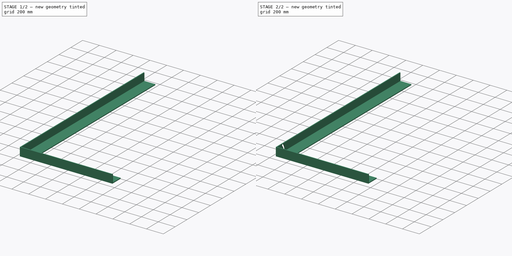
[diagram: build sequence overview — one tinted view per stage of 2, left to right]
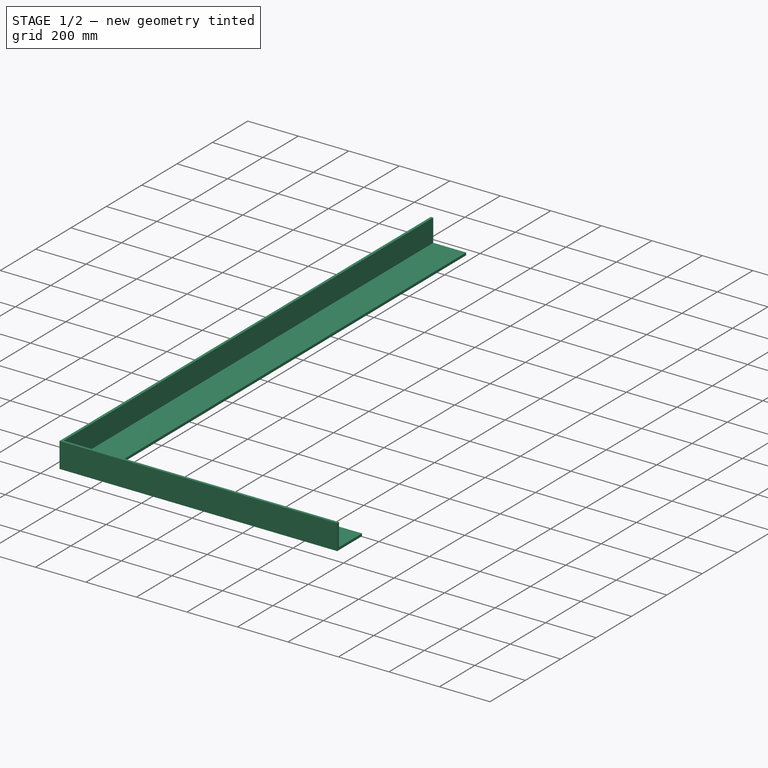
[diagram: stage 1 of 2 — iso view after this stage's code; geometry added in this stage tinted green]
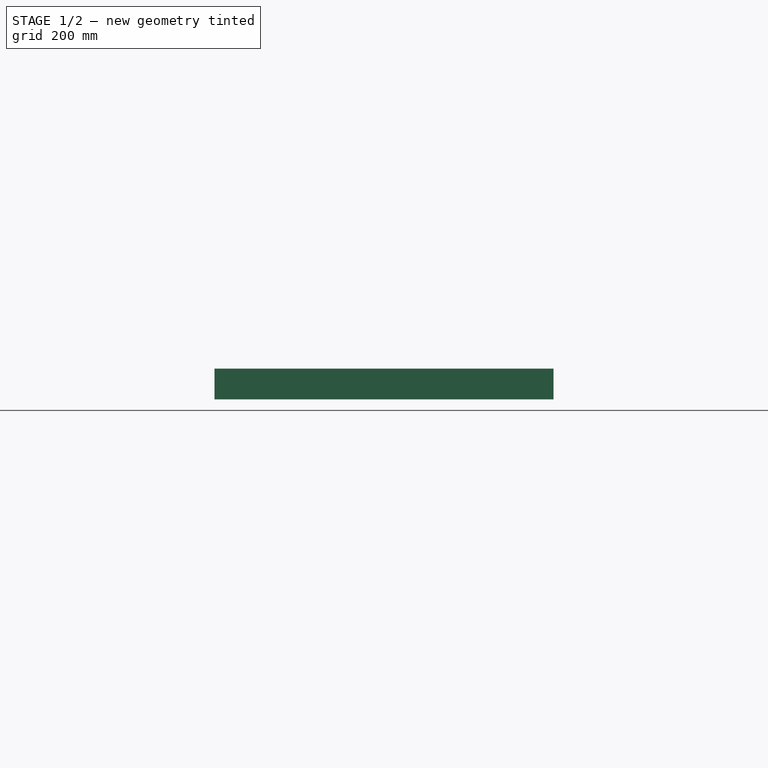
[diagram: stage 1 of 2 — front view after this stage's code; geometry added in this stage tinted green]
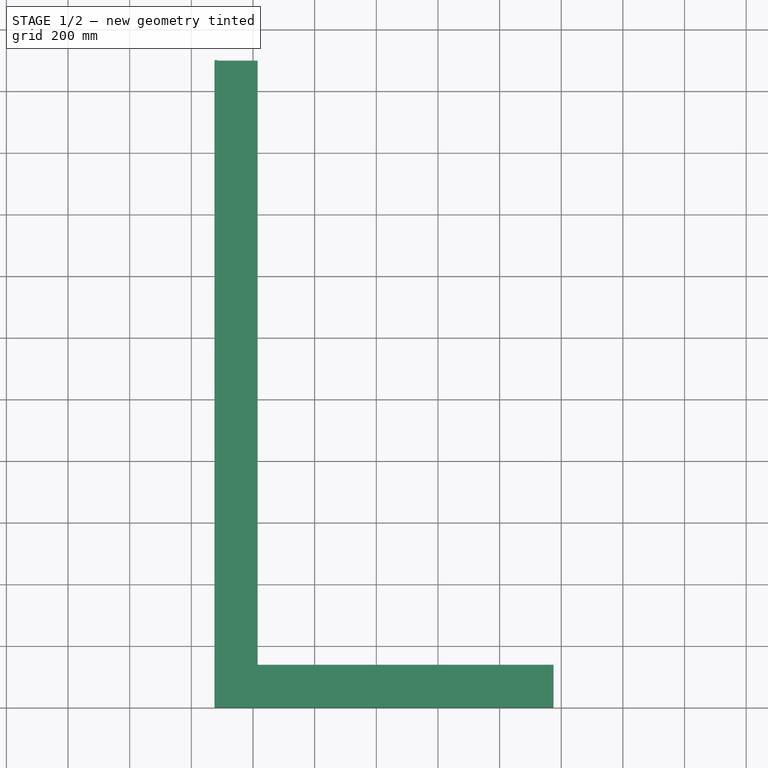
[diagram: stage 1 of 2 — top view after this stage's code; geometry added in this stage tinted green]
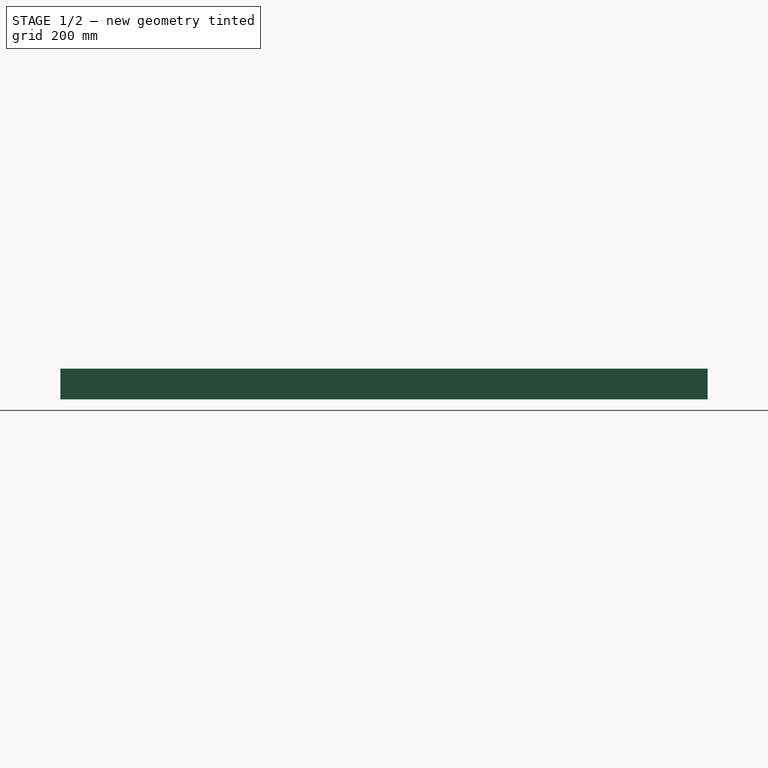
[diagram: stage 1 of 2 — right view after this stage's code; geometry added in this stage tinted green]
FCSTD DOCUMENT  (FreeCAD 0.17R10990 (Git))
Label: collector frame
License: All rights reserved
LicenseURL: http://en.wikipedia.org/wiki/All_rights_reserved
objects: Sketcher::SketchObject×3, PartDesign::Pocket×2, Spreadsheet::Sheet×1, PartDesign::Pad×1, PartDesign::Body×1
note: 10 computed .brp shape members not serialized (recipe doc carries the construction recipe); baked Part::Feature solids carry a one-line shape summary decoded from their .brp

FEATURE [Spreadsheet::Sheet] Spreadsheet  label="DImensions"
  cells = A1=base frame cross section; B1(baseframecrosssection)==50mm; A2=thickness; B2(thickness)==10mm; A3=inside thickness; B3(insidethickness)==B1 - 2 * B2; A4=base frame length; B4(baseframelength)==1100mm; A5=turn angle; B5(turnangle)==90deg; A6=distance of base frame support rod from origin; B6(distanceofbaseframesupportrodfromorigin)==200mm; A7=base frame support rod length; B7(baseframesupportrodlength)==1200mm; A8=distance between second base frame support rod; B8(distancebetweensecondbaseframesupportrod)==B4 - B6; A9=distance of vertical rods from origin; B9(distanceofverticalrodsfromorigin)==B16 * 0.5; A10=radius stopper rod pocket; B10(radiusstopperrodpocket)==20mm; A11=radius stopper rod; B11(radiusstopperrod)==B10 - 0.5mm; A12=half of base frame cross section; B12(halfofbaseframecrosssection)==B1 / 2; A13=base frame width; B13(baseframewidth)==1300mm; A14=half of base frame width; B14(halfofbaseframewidth)==B13 / 2; A15=stopper rod pocket depth; B15(stopperrodpocketdepth)==45mm; A16=length of collector frame; B16(lengthofcollectorframe)==2200mm; A17=height of stopper rod; B17(heightofstopperrod)==1850mm; A18=inner radius stopper rod; B18(innerradiusstopperrod)==B11 - B2; A19=height of hole at 30; B19(heightofholeat30)==606.93600000000004mm; A20=height of hole at 45; B20(heightofholeat45)==1050mm; A21=height of hole at 60; B21(heightofholeat60)==1816.5mm; A22=radius support rod horizontol pocket; B22(radiussupportrodhorizontolpocket)==10mm; A23=radius support rod horizontol; B23(radiussupportrodhorizontol)==B22 - 0.5mm; A24=collector frame length; B24(collectorframelength)==2100mm; A25=collector frame width; B25(collectorframewidth)==1100mm; A26=collector frame height; B26(collectorframeheight)==100mm; A27=collector frame pocket depth; B27(collectorframepocketdepth)==B26 - B2; A28=collector frame width after cut; B28(collectorframewidthaftercut)==150mm; A29=collector frame pocket inner width; B29(collectorframepocketinnerwidth)==B28 - B2; A30=collector frame plane offset; B30(collectorframeplaneoffset)==-B1 / 2; A31=collector frame x distance from origin; B31(collectorframexdistancefromorigin)==(B13 - B25 - B1) / 2; A32=collector frame pocket width; B32(collectorframepocketwidth)==B25 - B2; A33=collector frame pocket length; B33(collectorframepocketlength)==B24 - B2; A34=distance of second vertical rod from origin; B34(distanceofsecondverticalrodfromorigin)==B13 - B12; A35=support pin pocket radius; B35(supportpinpocketradius)==10mm; A36=support pin pocket x distance from origin; B36(supportpinpocketxdistancefromorigin)==50mm; A37=support pin radius; B37(supportpinradius)==9.5mm; A38=support pin length; B38(supportpinlength)==100mm; A39=collector frame pocket radius; B39(collectorframepocketradius)==12mm; A40=support pin height; B40(supportpinheight)==150mm; A41=collector frame guide pin pocket length; B41(collectorframeguidepinpocketlength)==2 * B39
FEATURE [Sketcher::SketchObject] Sketch
  MapMode = 5
  Support = -> [XY_Plane]
  expr: Constraints[15] = Spreadsheet.collectorframepocketinnerwidth
  expr: Constraints[13] = Spreadsheet.collectorframelength
  expr: Constraints[14] = Spreadsheet.collectorframewidth
  sketch-geometry (6):
    g0: LineSegment StartX=75 StartY=0 StartZ=0 EndX=75 EndY=2100 EndZ=0
    g1: LineSegment StartX=75 StartY=2100 StartZ=0 EndX=215 EndY=2100 EndZ=0
    g2: LineSegment StartX=215 StartY=2100 StartZ=0 EndX=215 EndY=140 EndZ=0
    g3: LineSegment StartX=215 StartY=140 StartZ=0 EndX=1175 EndY=140 EndZ=0
    g4: LineSegment StartX=1175 StartY=140 StartZ=0 EndX=1175 EndY=0 EndZ=0
    g5: LineSegment StartX=1175 StartY=0 StartZ=0 EndX=75 EndY=0 EndZ=0
  constraints (18):
    c: PointOnObject(g0,g-1)
    c: Vertical(g0)
    c: Coincident(g0,g1)
    c: Horizontal(g1)
    c: Coincident(g1,g2)
    c: Vertical(g2)
    c: Coincident(g2,g3)
    c: Horizontal(g3)
    c: Coincident(g3,g4)
    c: PointOnObject(g4,g-1)
    c: Coincident(g4,g5)
    c: Coincident(g5,g0)
    c: DistanceX(g-1,g0) = 75
    c: DistanceY(g0,g0) = 2100
    c: DistanceX(g5,g5) = 1100
    c: DistanceX(g1,g1) = 140
    c: Vertical(g4)
    c: Equal(g1,g4)
FEATURE [PartDesign::Pad] Pad
  Length = 100
  Length2 = 100
  Profile = -> Sketch
  Type = 0
  expr: Length = Spreadsheet.collectorframeheight
FEATURE [Sketcher::SketchObject] Sketch001
  ExternalGeometry = -> [Pad]
  MapMode = 5
  Placement = pos=(0,0,100) rot=(0,0,1;0rad)
  Support = -> [Pad]
  expr: Constraints[10] = Spreadsheet.thickness
  expr: Constraints[9] = Spreadsheet.thickness
  sketch-geometry (4):
    g0: LineSegment StartX=85 StartY=2100 StartZ=0 EndX=1175 EndY=2100 EndZ=0
    g1: LineSegment StartX=1175 StartY=2100 StartZ=0 EndX=1175 EndY=10 EndZ=0
    g2: LineSegment StartX=1175 StartY=10 StartZ=0 EndX=85 EndY=10 EndZ=0
    g3: LineSegment StartX=85 StartY=10 StartZ=0 EndX=85 EndY=2100 EndZ=0
  constraints (12):
    c: Coincident(g0,g1)
    c: Coincident(g1,g2)
    c: Coincident(g2,g3)
    c: Coincident(g3,g0)
    c: Horizontal(g0)
    c: Horizontal(g2)
    c: Vertical(g1)
    c: Vertical(g3)
    c: PointOnObject(g1,g-4)
    c: DistanceY(g-4,g1) = 10
    c: DistanceX(g-5,g0) = 10
    c: PointOnObject(g0,g-5)
FEATURE [PartDesign::Pocket] Pocket
  BaseFeature = -> Pad
  Length = 90
  Profile = -> Sketch001
  Type = 0
  expr: Length = Spreadsheet.collectorframepocketdepth
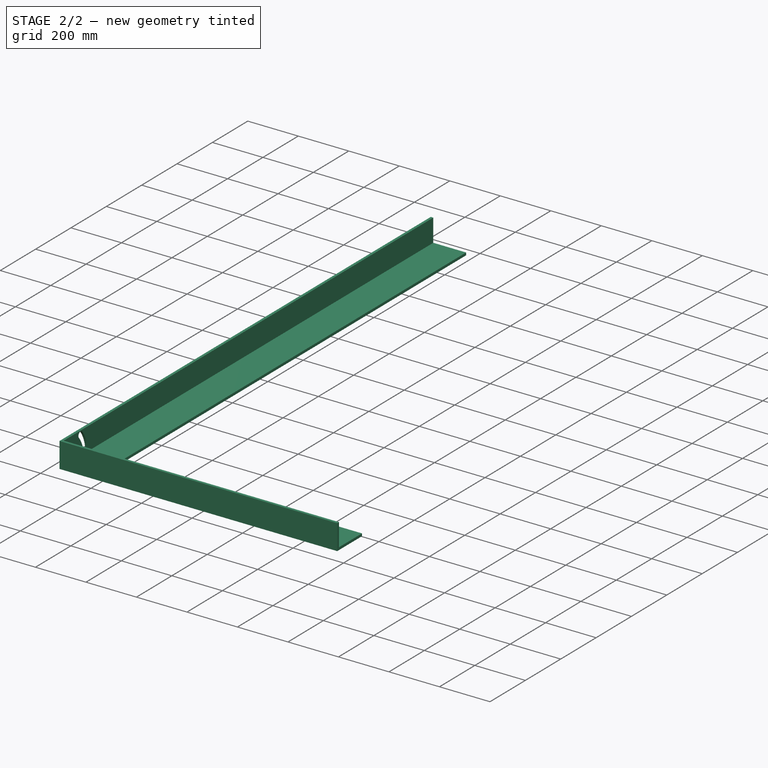
[diagram: stage 2 of 2 — iso view after this stage's code; geometry added in this stage tinted green]
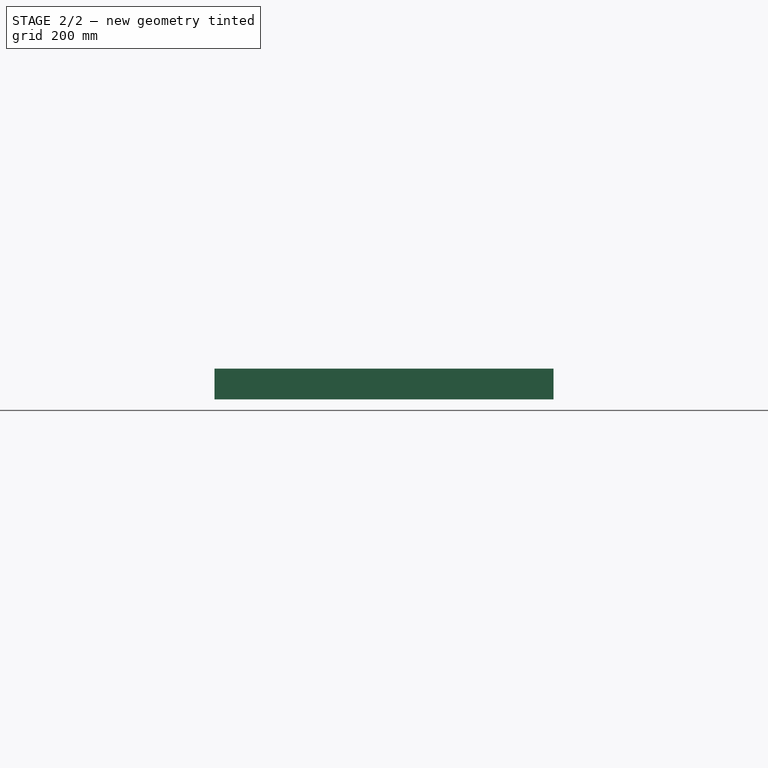
[diagram: stage 2 of 2 — front view after this stage's code; geometry added in this stage tinted green]
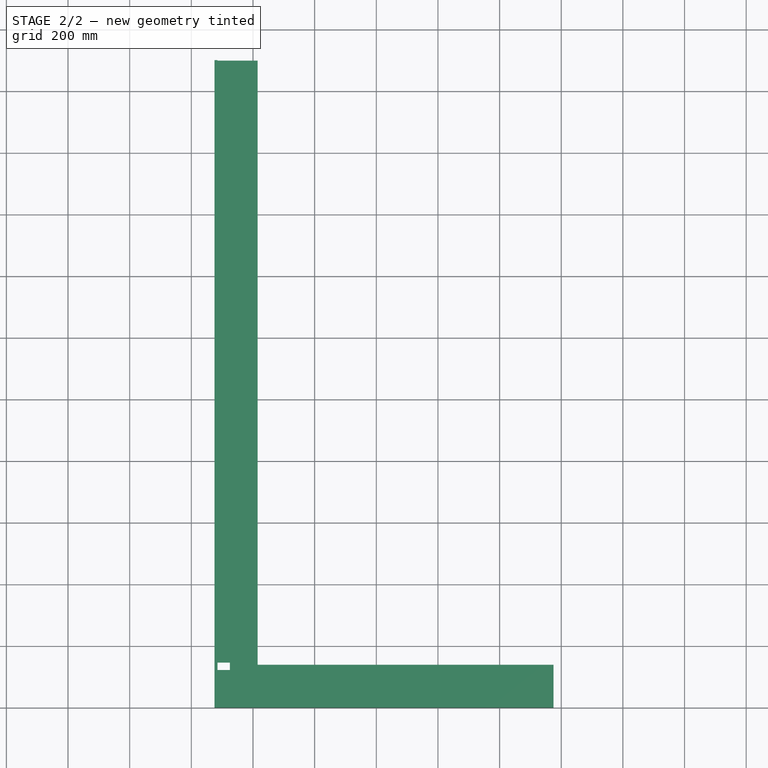
[diagram: stage 2 of 2 — top view after this stage's code; geometry added in this stage tinted green]
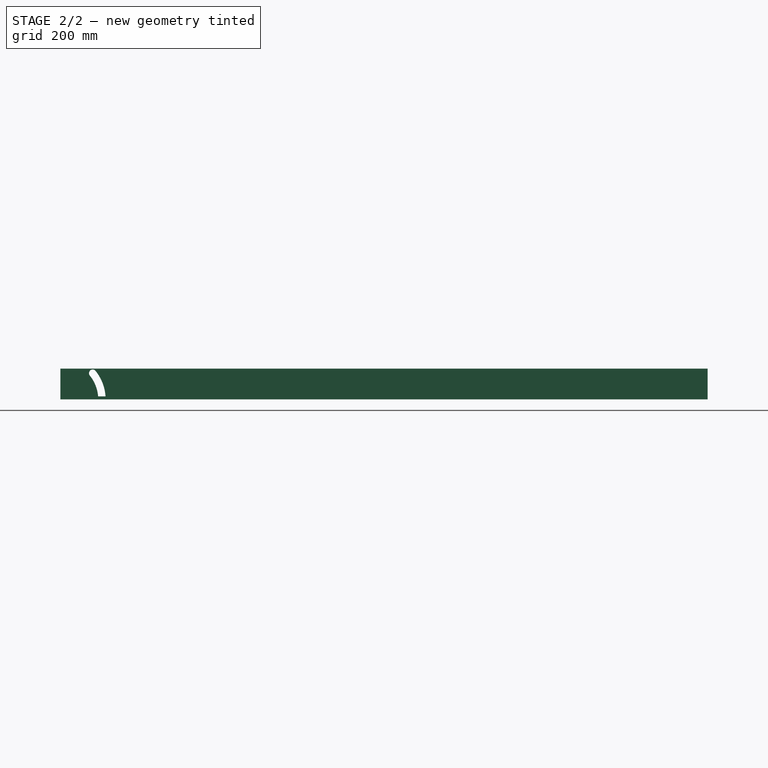
[diagram: stage 2 of 2 — right view after this stage's code; geometry added in this stage tinted green]
FEATURE [Sketcher::SketchObject] Sketch002
  MapMode = 5
  Placement = pos=(75,0,0) rot=(0.57735,-0.57735,-0.57735;2.0944rad)
  Support = -> [Pocket]
  expr: Constraints[8] = Spreadsheet.collectorframepocketradius
  sketch-geometry (4):
    g0: ArcOfCircle CenterX=-104.915 CenterY=84.9583 CenterZ=0 NormalX=0 NormalY=0 NormalZ=1 Radius=12 StartAngle=5.6025 EndAngle=8.7441
    g1: ArcOfCircle CenterX=0 CenterY=0 CenterZ=0 NormalX=0 NormalY=0 NormalZ=1 Radius=123 StartAngle=2.46091 EndAngle=3.14159
    g2: ArcOfCircle CenterX=0 CenterY=0 CenterZ=0 NormalX=0 NormalY=0 NormalZ=1 Radius=147 StartAngle=2.46091 EndAngle=3.14159
    g3: LineSegment StartX=-147 StartY=0 StartZ=0 EndX=-123 EndY=0 EndZ=0
  constraints (13):
    c: Coincident(g1,g-1)
    c: Coincident(g1,g0)
    c: Coincident(g2,g-1)
    c: Coincident(g2,g0)
    c: PointOnObject(g1,g-1)
    c: PointOnObject(g2,g-1)
    c: Coincident(g3,g2)
    c: Coincident(g3,g1)
    c: Radius(g0) = 12
    c: DistanceX(g3,g3) = 24
    c: DistanceX(g1,g-1) = 123
    c: Angle(g1) = 0.680678
    c: Angle(g2) = 0.680678
FEATURE [PartDesign::Pocket] Pocket001
  Length = 50
  Profile = -> Sketch002
  Type = 0
FEATURE [PartDesign::Body] Body
  Group = -> [Sketch,Pad,Sketch001,Pocket,Sketch002,Pocket001]
  Origin = -> BodyOrigin
  Tip = -> Pocket001
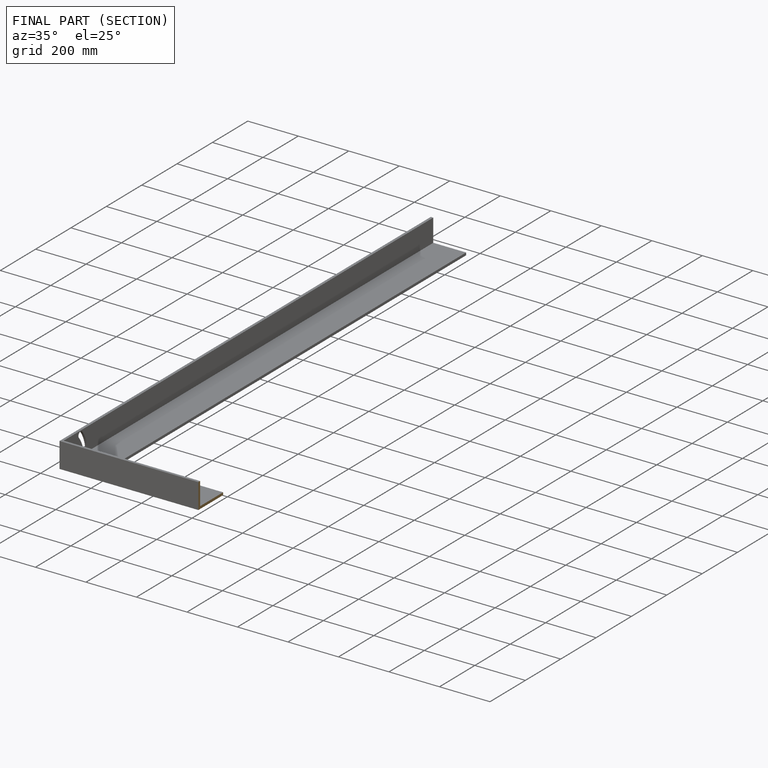
[diagram: finished part — half-section view (interior)]
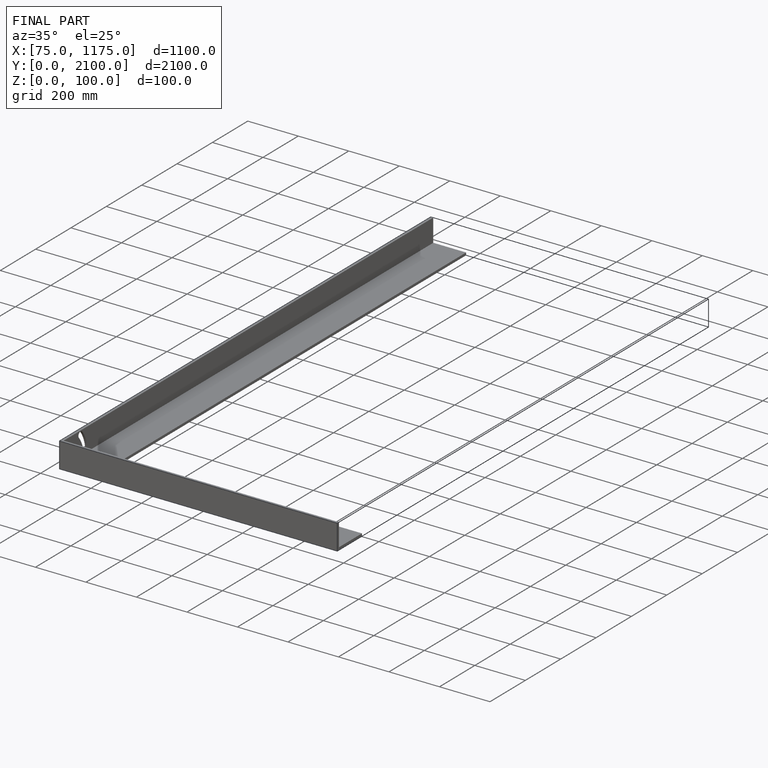
[diagram: finished part — iso view with bounding-box wireframe]
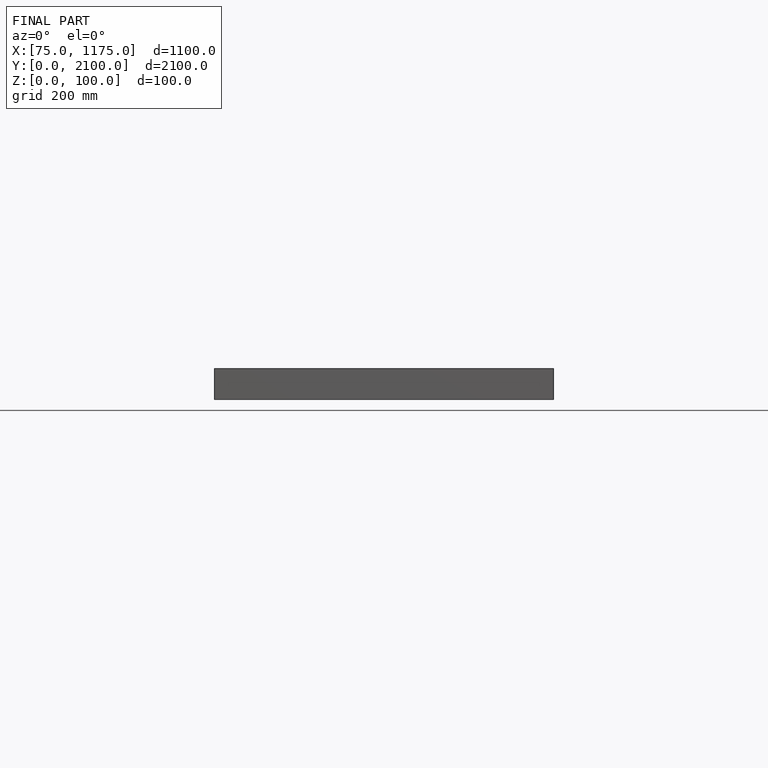
[diagram: finished part — front view with bounding-box wireframe]
